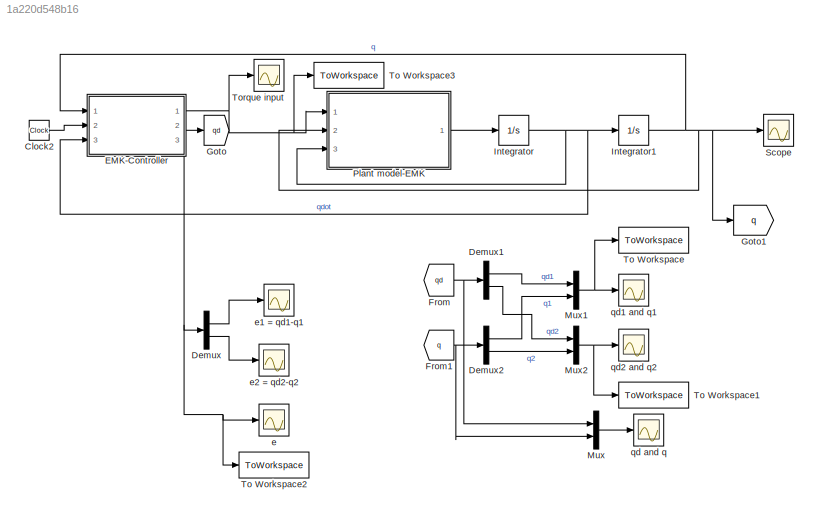
MODEL slx_1a220d548b16
KIND model
CONFIG AbsTol = auto
CONFIG EnableMultiTasking = off
CONFIG FixedStep = auto
CONFIG MaxStep = auto
CONFIG MinStep = auto
CONFIG RelTol = 1e-3
CONFIG SampleTimeConstraint = Unconstrained
CONFIG Solver = VariableStepAuto
CONFIG SolverName = VariableStepAuto
CONFIG StartTime = 0.0
CONFIG StopTime = 20
BLOCK [Clock] Clock2
BLOCK [Demux] Demux
  Outputs = 2
  Ports = [1, 2]
BLOCK [Demux] Demux1
  Outputs = 2
  Ports = [1, 2]
BLOCK [Demux] Demux2
  Outputs = 2
  Ports = [1, 2]
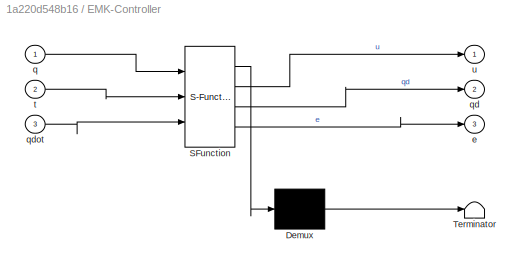
BLOCK [SubSystem] EMK-Controller
  ErrorFcn = Stateflow.Translate.translate
  PermitHierarchicalResolution = ExplicitOnly
  Ports = [3, 3]
  RequestExecContextInheritance = off
  SFBlockType = MATLAB Function
  TreatAsAtomicUnit = on
BLOCK [Demux] EMK-Controller/ Demux 
  Outputs = 1
  Ports = [1, 1]
BLOCK [S-Function] EMK-Controller/ SFunction 
  EnableBusSupport = on
  FunctionName = sf_sfun
  PortCounts = [3 4]
  Ports = [3, 4]
  SFcnIsStateOwnerBlock = off
  SFunctionDeploymentMode = off
  Tag = Stateflow S-Function 1
BLOCK [Terminator] EMK-Controller/ Terminator 
BLOCK [Outport] EMK-Controller/e
  Port = 3
BLOCK [Inport] EMK-Controller/q
BLOCK [Outport] EMK-Controller/qd
  Port = 2
BLOCK [Inport] EMK-Controller/qdot
  Port = 3
BLOCK [Inport] EMK-Controller/t
  Port = 2
BLOCK [Outport] EMK-Controller/u
BLOCK [From] From
  GotoTag = qd
BLOCK [From] From1
  GotoTag = q
BLOCK [Goto] Goto
  GotoTag = qd
BLOCK [Goto] Goto1
  GotoTag = q
BLOCK [Integrator] Integrator
  InitialCondition = zeros(2,1)
  Ports = [1, 1]
BLOCK [Integrator] Integrator1
  InitialCondition = zeros(2,1)
  Ports = [1, 1]
BLOCK [Mux] Mux
  DisplayOption = bar
  Inputs = 2
  Ports = [2, 1]
BLOCK [Mux] Mux1
  DisplayOption = bar
  Inputs = 2
  Ports = [2, 1]
BLOCK [Mux] Mux2
  DisplayOption = bar
  Inputs = 2
  Ports = [2, 1]
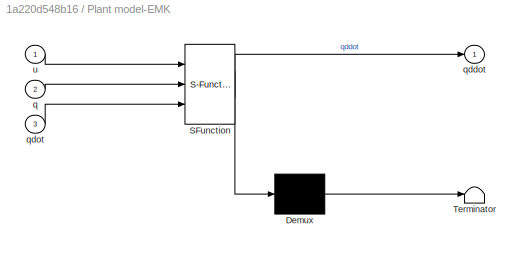
BLOCK [SubSystem] Plant model-EMK
  ErrorFcn = Stateflow.Translate.translate
  PermitHierarchicalResolution = ExplicitOnly
  Ports = [3, 1]
  RequestExecContextInheritance = off
  SFBlockType = MATLAB Function
  TreatAsAtomicUnit = on
BLOCK [Demux] Plant model-EMK/ Demux 
  Outputs = 1
  Ports = [1, 1]
BLOCK [S-Function] Plant model-EMK/ SFunction 
  EnableBusSupport = on
  FunctionName = sf_sfun
  PortCounts = [3 2]
  Ports = [3, 2]
  SFcnIsStateOwnerBlock = off
  SFunctionDeploymentMode = off
  Tag = Stateflow S-Function 2
BLOCK [Terminator] Plant model-EMK/ Terminator 
BLOCK [Inport] Plant model-EMK/q
  Port = 2
BLOCK [Outport] Plant model-EMK/qddot
BLOCK [Inport] Plant model-EMK/qdot
  Port = 3
BLOCK [Inport] Plant model-EMK/u
BLOCK [Scope] Scope
  Floating = off
  NumInputPorts = 1
  Ports = [1]
  ScopeSpecificationString = Simulink.scopes.TimeScopeBlockCfg('CurrentConfiguration', extmgr.ConfigurationSet(extmgr.Configuration('Core','General UI',true),extmgr.Configuration('Core','Source UI',true),extmgr.Configuration('Sources','WiredSimulink',true),extmgr.Configuration('Visuals','Time Domain',true,'SerializedDisplays',{struct('MinYLimReal','-1.25163','MaxYLimReal','1.25234','YLabelReal','','MinYLimMag','0.00000','MaxY...<+1361ch>
BLOCK [ToWorkspace] To Workspace
  FixptAsFi = on
  MaxDataPoints = inf
  Ports = [1]
  SampleTime = -1
  SaveFormat = Timeseries
  VariableName = q1
BLOCK [ToWorkspace] To Workspace1
  FixptAsFi = on
  MaxDataPoints = inf
  Ports = [1]
  SampleTime = -1
  SaveFormat = Timeseries
  VariableName = q2
BLOCK [ToWorkspace] To Workspace2
  FixptAsFi = on
  MaxDataPoints = inf
  Ports = [1]
  SampleTime = -1
  SaveFormat = Timeseries
  VariableName = e
BLOCK [ToWorkspace] To Workspace3
  FixptAsFi = on
  MaxDataPoints = inf
  Ports = [1]
  SampleTime = -1
  SaveFormat = Timeseries
  VariableName = T
BLOCK [Scope] Torque input
  Floating = off
  NumInputPorts = 1
  Ports = [1]
  ScopeSpecificationString = Simulink.scopes.TimeScopeBlockCfg('CurrentConfiguration', extmgr.ConfigurationSet(extmgr.Configuration('Core','General UI',true),extmgr.Configuration('Core','Source UI',true),extmgr.Configuration('Sources','WiredSimulink',true,'DataLoggingVariableName','ScopeData3'),extmgr.Configuration('Visuals','Time Domain',true,'SerializedDisplays',{struct('MinYLimReal','-50.46989','MaxYLimReal','226.47221','Y...<+1821ch>
BLOCK [Scope] e
  Floating = off
  NumInputPorts = 1
  Ports = [1]
  ScopeSpecificationString = Simulink.scopes.TimeScopeBlockCfg('CurrentConfiguration', extmgr.ConfigurationSet(extmgr.Configuration('Core','General UI',true),extmgr.Configuration('Core','Source UI',true),extmgr.Configuration('Sources','WiredSimulink',true,'DataLoggingVariableName','ScopeData7'),extmgr.Configuration('Visuals','Time Domain',true,'SerializedDisplays',{struct('MinYLimReal','-0.12568','MaxYLimReal','1.13026','YLab...<+1431ch>
BLOCK [Scope] e1 = qd1-q1
  Floating = off
  NumInputPorts = 1
  Ports = [1]
  ScopeSpecificationString = Simulink.scopes.TimeScopeBlockCfg('CurrentConfiguration', extmgr.ConfigurationSet(extmgr.Configuration('Core','General UI',true),extmgr.Configuration('Core','Source UI',true),extmgr.Configuration('Sources','WiredSimulink',true,'DataLoggingVariableName','ScopeData1'),extmgr.Configuration('Visuals','Time Domain',true,'SerializedDisplays',{struct('MinYLimReal','-0.12759','MaxYLimReal','1.12721','YLab...<+1366ch>
BLOCK [Scope] e2 = qd2-q2
  Floating = off
  NumInputPorts = 1
  Ports = [1]
  ScopeSpecificationString = Simulink.scopes.TimeScopeBlockCfg('CurrentConfiguration', extmgr.ConfigurationSet(extmgr.Configuration('Core','General UI',true),extmgr.Configuration('Core','Source UI',true),extmgr.Configuration('Sources','WiredSimulink',true,'DataLoggingVariableName','ScopeData4'),extmgr.Configuration('Visuals','Time Domain',true,'SerializedDisplays',{struct('MinYLimReal','-0.12645','MaxYLimReal','1.12516','YLab...<+1366ch>
BLOCK [Scope] qd and q
  Floating = off
  NumInputPorts = 1
  Ports = [1]
  ScopeSpecificationString = Simulink.scopes.TimeScopeBlockCfg('CurrentConfiguration', extmgr.ConfigurationSet(extmgr.Configuration('Core','General UI',true),extmgr.Configuration('Core','Source UI',true),extmgr.Configuration('Sources','WiredSimulink',true,'DataLoggingVariableName','ScopeData6'),extmgr.Configuration('Visuals','Time Domain',true,'SerializedDisplays',{struct('MinYLimReal','-1.28087','MaxYLimReal','1.25343','YLab...<+1422ch>
BLOCK [Scope] qd1 and q1
  Floating = off
  NumInputPorts = 1
  Ports = [1]
  ScopeSpecificationString = Simulink.scopes.TimeScopeBlockCfg('CurrentConfiguration', extmgr.ConfigurationSet(extmgr.Configuration('Core','General UI',true),extmgr.Configuration('Core','Source UI',true),extmgr.Configuration('Sources','WiredSimulink',true,'DataLoggingVariableName','ScopeData2'),extmgr.Configuration('Visuals','Time Domain',true,'SerializedDisplays',{struct('MinYLimReal','-1.28087','MaxYLimReal','1.25343','YLab...<+1399ch>
BLOCK [Scope] qd2 and q2
  Floating = off
  NumInputPorts = 1
  Ports = [1]
  ScopeSpecificationString = Simulink.scopes.TimeScopeBlockCfg('CurrentConfiguration', extmgr.ConfigurationSet(extmgr.Configuration('Core','General UI',true),extmgr.Configuration('Core','Source UI',true),extmgr.Configuration('Sources','WiredSimulink',true,'DataLoggingVariableName','ScopeData5'),extmgr.Configuration('Visuals','Time Domain',true,'SerializedDisplays',{struct('MinYLimReal','-1.26569','MaxYLimReal','1.25174','YLab...<+1399ch>
LINE Clock2:1 -> EMK-Controller:2
LINE Demux1:1 -> Mux1:1
LINE Demux1:2 -> Mux2:1
LINE Demux2:1 -> Mux1:2
LINE Demux2:2 -> Mux2:2
LINE Demux:1 -> e1 = qd1-q1:1
LINE Demux:2 -> e2 = qd2-q2:1
NET EMK-Controller:1 -> Plant model-EMK:1, To Workspace3:1, Torque input:1
LINE EMK-Controller:2 -> Goto:1
NET EMK-Controller:3 -> Demux:1, To Workspace2:1, e:1
NET From1:1 -> Demux2:1, Mux:2
NET From:1 -> Demux1:1, Mux:1
NET Integrator1:1 -> EMK-Controller:1, Goto1:1, Plant model-EMK:2, Scope:1
NET Integrator:1 -> EMK-Controller:3, Integrator1:1, Plant model-EMK:3
NET Mux1:1 -> To Workspace:1, qd1 and q1:1
NET Mux2:1 -> To Workspace1:1, qd2 and q2:1
LINE Mux:1 -> qd and q:1
LINE Plant model-EMK:1 -> Integrator:1
note: NET lines group one-source signal fan-out (src -> all destinations, sorted); 1:1 wires keep LINE
CHART EMK-Controller states=1 transitions=1
  STATE_LABEL 'eML_blk_kernel()'
  STATE_LABEL 'SCRIPT:\n%% Exact model knowledge controller\n\nfunction [u,qd,e] = fcn(q,t,qdot)\n\nq1 = q(1);\nq2 = q(2);\n\nq1dot =qdot(1);\nq2dot = qdot(2);\n\np1 = 3.473; %%% kg.m^2\np2 = 0.196; %%% kg.m^2\np3 = 0.242; %%% kg.m^2\n\nfd1 = 5.3; %%% N.m.sec\nfd2 = 1.1; %%% N.m.sec\n\n%%% Inertia matrix M(q)\nM =[p1+2*p3*cos(q2)     p2 + p3*cos(q2);...\n    p2 + p3* cos(q2)        p2];\n\n%%% Centripetal and Coriollis term V(q,qdot)...<+448ch>'
CHART Plant model-EMK states=1 transitions=1
  STATE_LABEL 'eML_blk_kernel()'
  STATE_LABEL 'SCRIPT:\n%% Robot Plant model - EMK\nfunction qddot = fcn(u,q,qdot)\n\nq1 = q(1);\nq2 = q(2);\n\nq1dot =qdot(1);\nq2dot = qdot(2);\n\np1 = 3.473; %%% kg.m^2\np2 = 0.196; %%% kg.m^2\np3 = 0.242; %%% kg.m^2\n\nfd1 = 5.3; %%% N.m.sec\nfd2 = 1.1; %%% N.m.sec\n\nTd1 = 0;   %%% N.m\nTd2 = 0;   %%% N.m\n%%% Inertia matrix M(q)\nM =[p1+2*p3*cos(q2)     p2 + p3*cos(q2);...\n    p2 + p3* cos(q2)        p2];\n\n%%% Centripetal and...<+323ch>'
CHART  states=0 transitions=0
CHART  states=0 transitions=0
